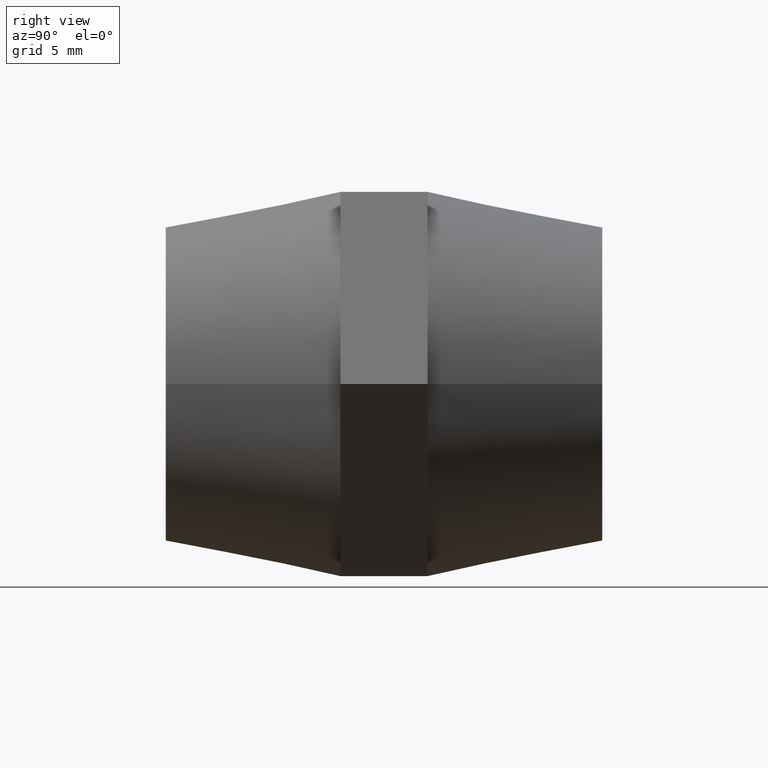
[diagram: clean part render]
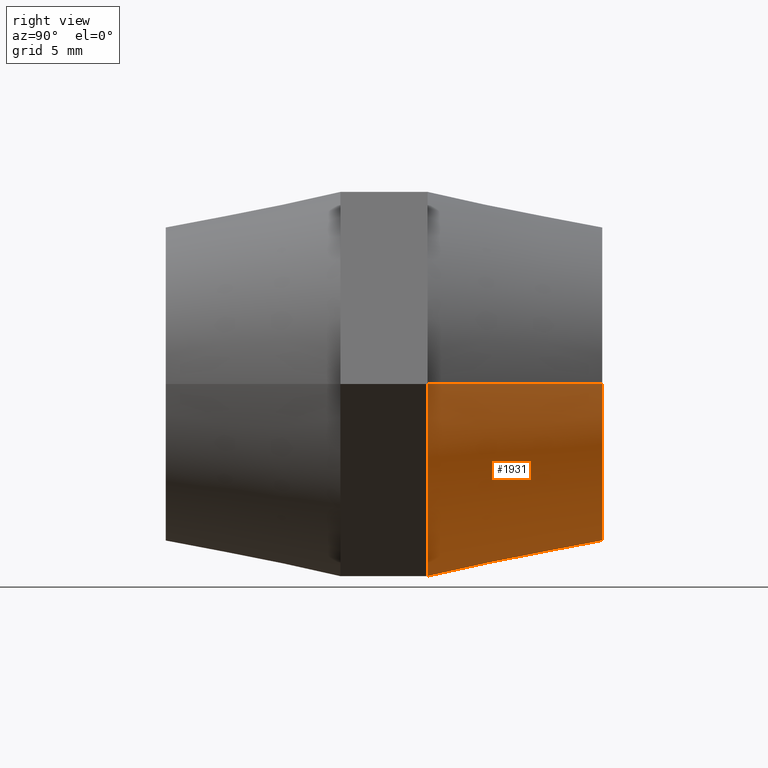
[diagram: same view with one face highlighted and labeled with its STEP entity id]
A machine part, right view. The second image highlights one B-rep face of the part: STEP entity #1931.
In plain terms, the highlighted conical surface has half-angle 11.31 deg.
Its self-contained STEP definition (entity closure, byte-faithful):
#2 = CARTESIAN_POINT ( 'NONE',  ( 9.000000000000000000, 12.50000000000000200, 0.0000000000000000000 ) ) ;
#12 = DIRECTION ( 'NONE',  ( -0.1961161351381839600, -0.9805806756909202200, 2.401729971581268900E-017 ) ) ;
#16 = LINE ( 'NONE', #2, #1617 ) ;
#332 = DIRECTION ( 'NONE',  ( 1.224646799147352000E-016, -1.000000000000000000, 0.0000000000000000000 ) ) ;
#340 = DIRECTION ( 'NONE',  ( -1.000000000000000000, -1.182766006347823100E-016, 0.0000000000000000000 ) ) ;
#393 = CARTESIAN_POINT ( 'NONE',  ( -10.99999999999999800, 2.499999999999998200, 1.347111479062088400E-015 ) ) ;
#437 = CARTESIAN_POINT ( 'NONE',  ( 1.224646799147351900E-015, 2.500000000000000000, 0.0000000000000000000 ) ) ;
#459 = AXIS2_PLACEMENT_3D ( 'NONE', #1266, #332, #3687 ) ;
#608 = VERTEX_POINT ( 'NONE', #3106 ) ;
#628 = EDGE_CURVE ( 'NONE', #911, #608, #1486, .T. ) ;
#663 = CARTESIAN_POINT ( 'NONE',  ( -9.526279441628831900, 2.500000000000000000, -5.500000000000000000 ) ) ;
#725 = ORIENTED_EDGE ( 'NONE', *, *, #1558, .F. ) ;
#764 = CIRCLE ( 'NONE', #1076, 11.00000000000000000 ) ;
#782 = ORIENTED_EDGE ( 'NONE', *, *, #628, .T. ) ;
#797 = ORIENTED_EDGE ( 'NONE', *, *, #3780, .F. ) ;
#804 = LINE ( 'NONE', #3629, #1282 ) ;
#852 = DIRECTION ( 'NONE',  ( -1.000000000000000000, -1.182766006347823100E-016, 0.0000000000000000000 ) ) ;
#863 = CONICAL_SURFACE ( 'NONE', #459, 9.000000000000000000, 0.1973955598498807800 ) ;
#878 = CARTESIAN_POINT ( 'NONE',  ( 1.224646799147351900E-015, 2.500000000000000000, 0.0000000000000000000 ) ) ;
#911 = VERTEX_POINT ( 'NONE', #2350 ) ;
#926 = DIRECTION ( 'NONE',  ( -1.000000000000000000, -1.182766006347823100E-016, 0.0000000000000000000 ) ) ;
#957 = CIRCLE ( 'NONE', #3860, 9.000000000000000000 ) ;
#988 = DIRECTION ( 'NONE',  ( -1.000000000000000000, -1.182766006347823100E-016, 0.0000000000000000000 ) ) ;
#1069 = VERTEX_POINT ( 'NONE', #1212 ) ;
#1076 = AXIS2_PLACEMENT_3D ( 'NONE', #1449, #3839, #852 ) ;
#1212 = CARTESIAN_POINT ( 'NONE',  ( 9.000000000000000000, 12.50000000000000200, 0.0000000000000000000 ) ) ;
#1266 = CARTESIAN_POINT ( 'NONE',  ( -1.349783804395671800E-031, 12.50000000000000000, 0.0000000000000000000 ) ) ;
#1282 = VECTOR ( 'NONE', #12, 1000.000000000000000 ) ;
#1298 = ORIENTED_EDGE ( 'NONE', *, *, #2272, .T. ) ;
#1449 = CARTESIAN_POINT ( 'NONE',  ( 1.224646799147351900E-015, 2.500000000000000000, 0.0000000000000000000 ) ) ;
#1486 = CIRCLE ( 'NONE', #2600, 11.00000000000000000 ) ;
#1505 = DIRECTION ( 'NONE',  ( 0.1961161351381841600, -0.9805806756909201100, 0.0000000000000000000 ) ) ;
#1519 = VERTEX_POINT ( 'NONE', #1601 ) ;
#1552 = CARTESIAN_POINT ( 'NONE',  ( 1.224646799147351900E-015, 2.500000000000000000, 0.0000000000000000000 ) ) ;
#1558 = EDGE_CURVE ( 'NONE', #1069, #1519, #957, .T. ) ;
#1601 = CARTESIAN_POINT ( 'NONE',  ( -9.000000000000000000, 12.49999999999999800, 1.224646799147353300E-015 ) ) ;
#1617 = VECTOR ( 'NONE', #1505, 1000.000000000000100 ) ;
#1667 = EDGE_CURVE ( 'NONE', #3771, #3722, #764, .T. ) ;
#1670 = ORIENTED_EDGE ( 'NONE', *, *, #1667, .T. ) ;
#1689 = CARTESIAN_POINT ( 'NONE',  ( -1.349783804395671800E-031, 12.50000000000000000, 0.0000000000000000000 ) ) ;
#1776 = EDGE_LOOP ( 'NONE', ( #797, #725, #3582, #782, #1781, #1298, #1670 ) ) ;
#1781 = ORIENTED_EDGE ( 'NONE', *, *, #2167, .T. ) ;
#1931 = ADVANCED_FACE ( 'NONE', ( #3566 ), #863, .T. ) ;
#1947 = AXIS2_PLACEMENT_3D ( 'NONE', #1552, #2143, #340 ) ;
#2143 = DIRECTION ( 'NONE',  ( -1.224646799147352000E-016, 1.000000000000000000, 0.0000000000000000000 ) ) ;
#2154 = EDGE_CURVE ( 'NONE', #1069, #911, #16, .T. ) ;
#2167 = EDGE_CURVE ( 'NONE', #608, #2449, #3843, .T. ) ;
#2272 = EDGE_CURVE ( 'NONE', #2449, #3771, #2426, .T. ) ;
#2350 = CARTESIAN_POINT ( 'NONE',  ( 11.00000000000000200, 2.500000000000001800, 0.0000000000000000000 ) ) ;
#2426 = CIRCLE ( 'NONE', #1947, 11.00000000000000000 ) ;
#2449 = VERTEX_POINT ( 'NONE', #3792 ) ;
#2469 = AXIS2_PLACEMENT_3D ( 'NONE', #878, #3314, #926 ) ;
#2600 = AXIS2_PLACEMENT_3D ( 'NONE', #437, #3144, #988 ) ;
#2925 = DIRECTION ( 'NONE',  ( -1.224646799147352000E-016, 1.000000000000000000, 0.0000000000000000000 ) ) ;
#3106 = CARTESIAN_POINT ( 'NONE',  ( 9.526279441628821200, 2.500000000000000000, -5.500000000000000000 ) ) ;
#3144 = DIRECTION ( 'NONE',  ( -1.224646799147352000E-016, 1.000000000000000000, 0.0000000000000000000 ) ) ;
#3223 = DIRECTION ( 'NONE',  ( -1.000000000000000000, -1.927470528863119000E-016, 0.0000000000000000000 ) ) ;
#3314 = DIRECTION ( 'NONE',  ( -1.224646799147352000E-016, 1.000000000000000000, 0.0000000000000000000 ) ) ;
#3566 = FACE_OUTER_BOUND ( 'NONE', #1776, .T. ) ;
#3582 = ORIENTED_EDGE ( 'NONE', *, *, #2154, .T. ) ;
#3629 = CARTESIAN_POINT ( 'NONE',  ( -9.000000000000000000, 12.49999999999999800, 1.102182119232617700E-015 ) ) ;
#3687 = DIRECTION ( 'NONE',  ( 1.000000000000000000, 1.927470528863119000E-016, 0.0000000000000000000 ) ) ;
#3722 = VERTEX_POINT ( 'NONE', #393 ) ;
#3771 = VERTEX_POINT ( 'NONE', #663 ) ;
#3780 = EDGE_CURVE ( 'NONE', #1519, #3722, #804, .T. ) ;
#3792 = CARTESIAN_POINT ( 'NONE',  ( -1.349783804395671800E-031, 2.500000000000000000, -11.00000000000000000 ) ) ;
#3839 = DIRECTION ( 'NONE',  ( -1.224646799147352000E-016, 1.000000000000000000, 0.0000000000000000000 ) ) ;
#3843 = CIRCLE ( 'NONE', #2469, 11.00000000000000000 ) ;
#3860 = AXIS2_PLACEMENT_3D ( 'NONE', #1689, #2925, #3223 ) ;